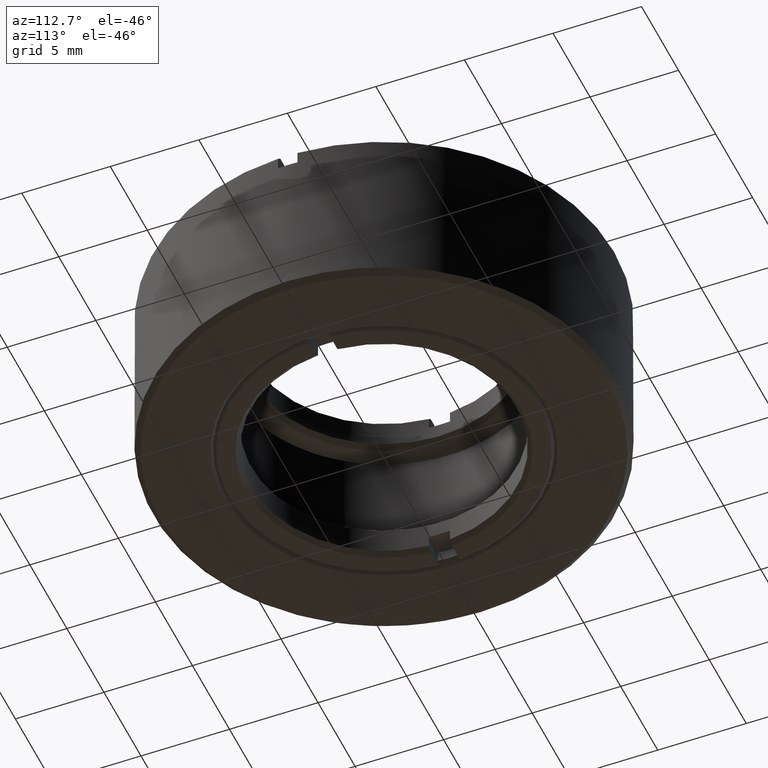
[diagram: clean part render]
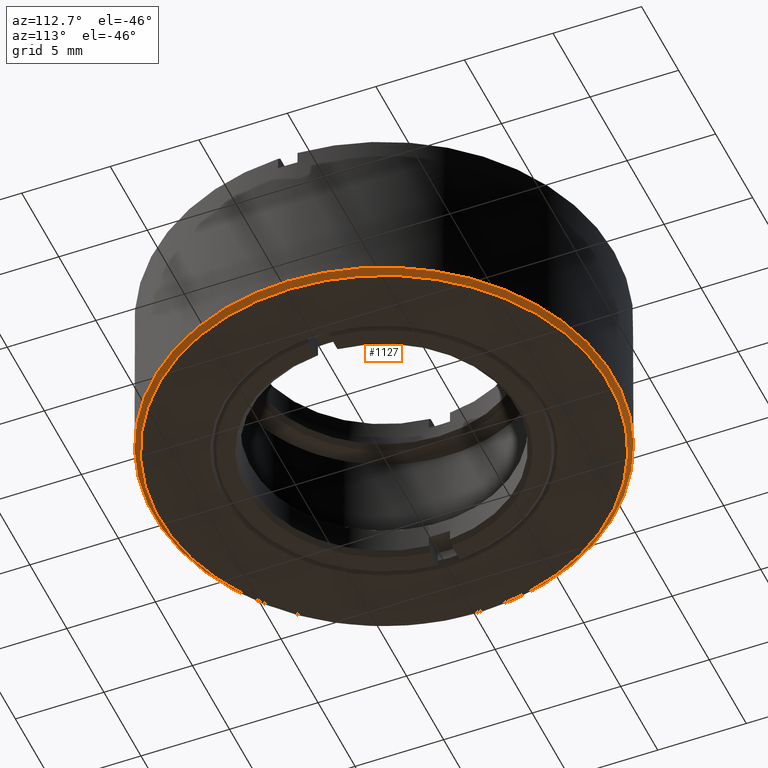
[diagram: same view with one face highlighted and labeled with its STEP entity id]
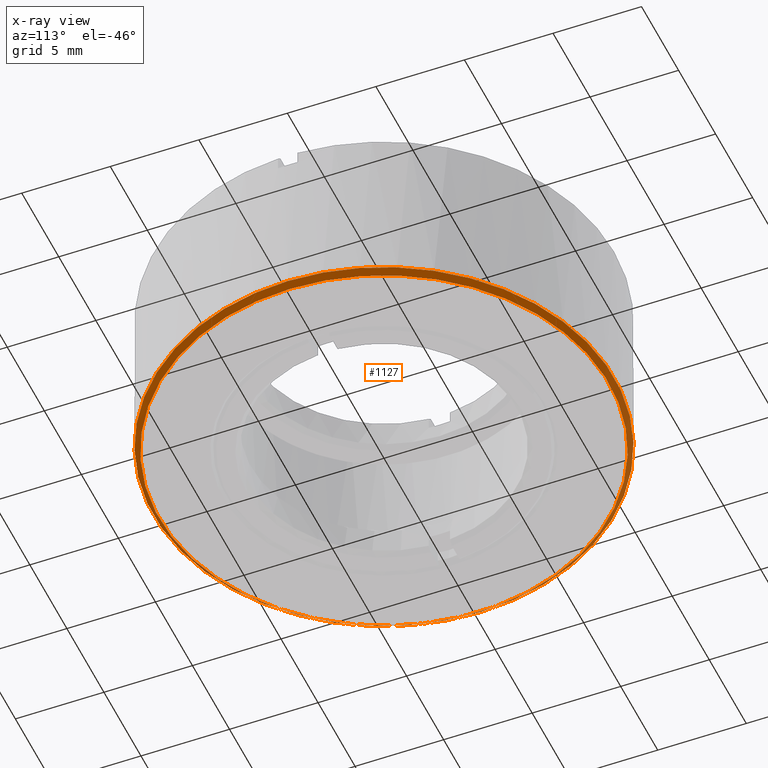
[diagram: x-ray of the same camera — body ghosted, the highlighted face saturated]
A machine part, auxiliary view. The second image highlights one B-rep face of the part: STEP entity #1127.
The next image is the same camera in x-ray: the body ghosted, the highlighted face saturated — about 0% of this face is hidden behind the body in this view.
In plain terms, the highlighted conical surface has half-angle 45 deg.
Its self-contained STEP definition (entity closure, byte-faithful):
#9 = EDGE_CURVE ( 'NONE', #107, #107, #142, .T. ) ;
#107 = VERTEX_POINT ( 'NONE', #124 ) ;
#124 = CARTESIAN_POINT ( 'NONE',  ( -13.00000000000000355, 0.000000000000000000, -4.700000000000000178 ) ) ;
#142 = CIRCLE ( 'NONE', #687, 13.00000000000000355 ) ;
#183 = CARTESIAN_POINT ( 'NONE',  ( 0.000000000000000000, 0.000000000000000000, -4.699999999999998401 ) ) ;
#228 = EDGE_CURVE ( 'NONE', #362, #362, #1133, .T. ) ;
#361 = DIRECTION ( 'NONE',  ( 0.000000000000000000, -0.000000000000000000, 1.000000000000000000 ) ) ;
#362 = VERTEX_POINT ( 'NONE', #1337 ) ;
#427 = EDGE_LOOP ( 'NONE', ( #693 ) ) ;
#438 = DIRECTION ( 'NONE',  ( 1.000000000000000000, 0.000000000000000000, 0.000000000000000000 ) ) ;
#446 = ORIENTED_EDGE ( 'NONE', *, *, #228, .T. ) ;
#542 = DIRECTION ( 'NONE',  ( 0.000000000000000000, 0.000000000000000000, 1.000000000000000000 ) ) ;
#687 = AXIS2_PLACEMENT_3D ( 'NONE', #1541, #542, #1291 ) ;
#693 = ORIENTED_EDGE ( 'NONE', *, *, #9, .F. ) ;
#801 = FACE_BOUND ( 'NONE', #1424, .T. ) ;
#951 = CONICAL_SURFACE ( 'NONE', #1499, 13.00000000000000533, 0.7853981633974526089 ) ;
#1054 = AXIS2_PLACEMENT_3D ( 'NONE', #1080, #361, #1492 ) ;
#1080 = CARTESIAN_POINT ( 'NONE',  ( 0.000000000000000000, 0.000000000000000000, -5.000000000000000888 ) ) ;
#1127 = ADVANCED_FACE ( 'NONE', ( #1428, #801 ), #951, .T. ) ;
#1133 = CIRCLE ( 'NONE', #1054, 12.69999999999999929 ) ;
#1291 = DIRECTION ( 'NONE',  ( -1.000000000000000000, 0.000000000000000000, 0.000000000000000000 ) ) ;
#1337 = CARTESIAN_POINT ( 'NONE',  ( 12.69999999999999929, 0.000000000000000000, -5.000000000000000888 ) ) ;
#1424 = EDGE_LOOP ( 'NONE', ( #446 ) ) ;
#1428 = FACE_OUTER_BOUND ( 'NONE', #427, .T. ) ;
#1492 = DIRECTION ( 'NONE',  ( 1.000000000000000000, 0.000000000000000000, 0.000000000000000000 ) ) ;
#1499 = AXIS2_PLACEMENT_3D ( 'NONE', #183, #1553, #438 ) ;
#1541 = CARTESIAN_POINT ( 'NONE',  ( 0.000000000000000000, 0.000000000000000000, -4.700000000000000178 ) ) ;
#1553 = DIRECTION ( 'NONE',  ( 0.000000000000000000, -0.000000000000000000, 1.000000000000000000 ) ) ;